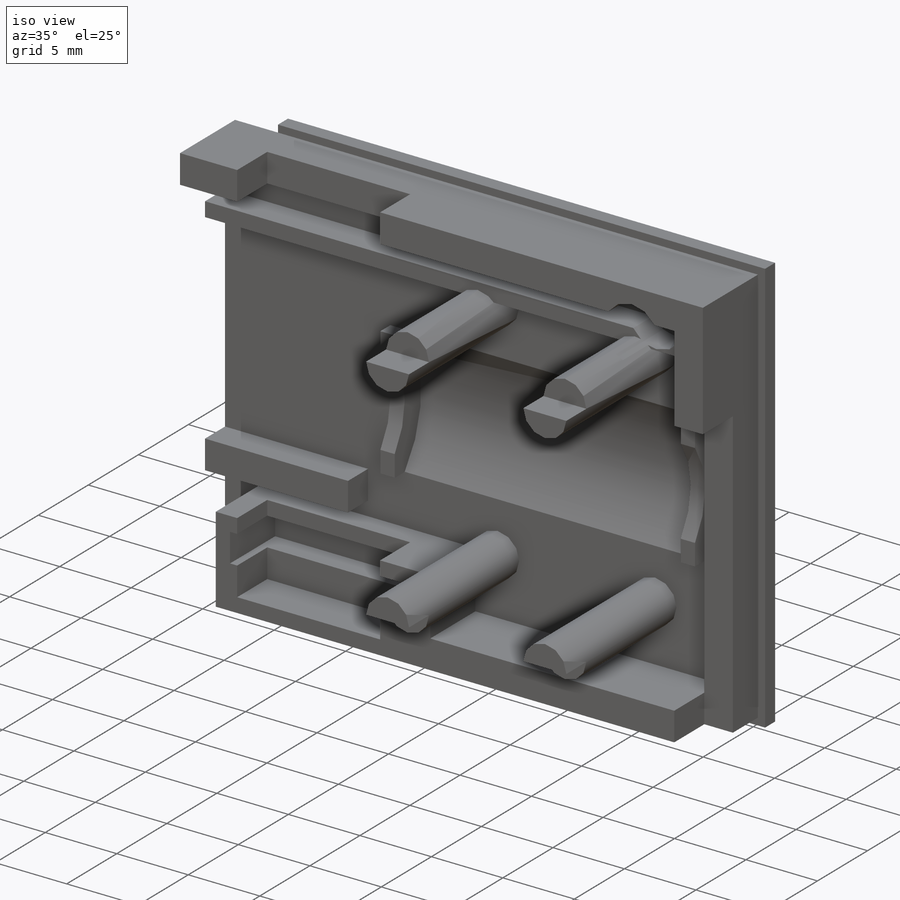
[diagram: iso view]
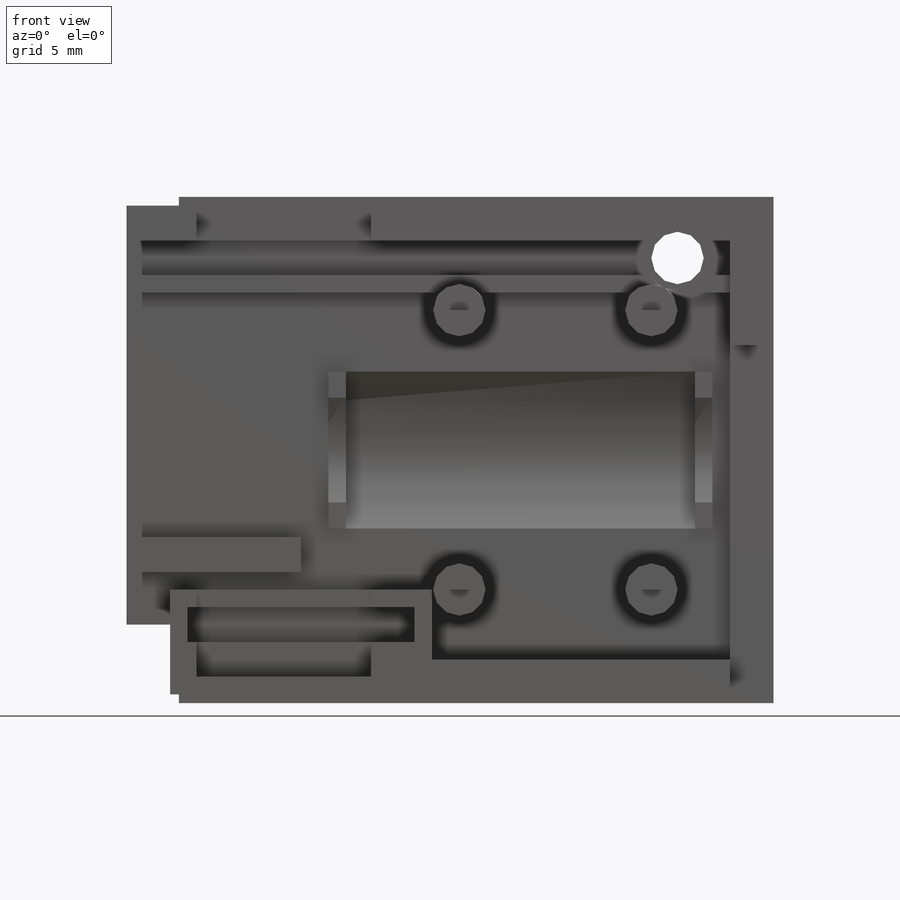
[diagram: front view]
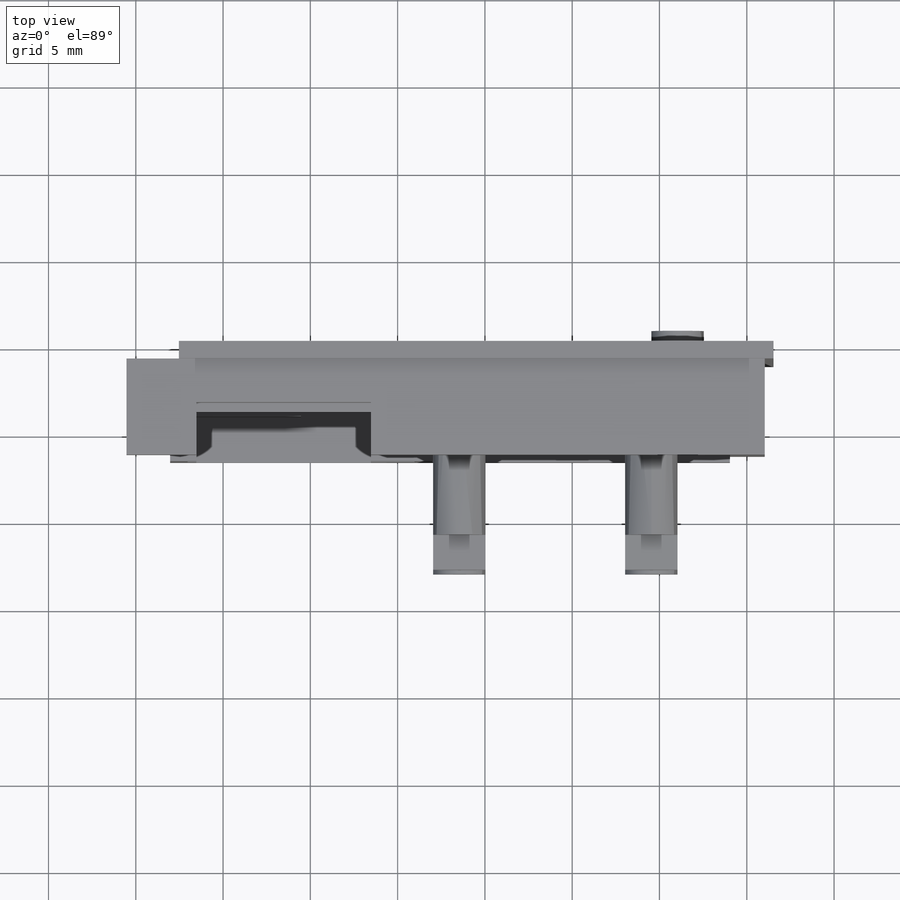
[diagram: top view]
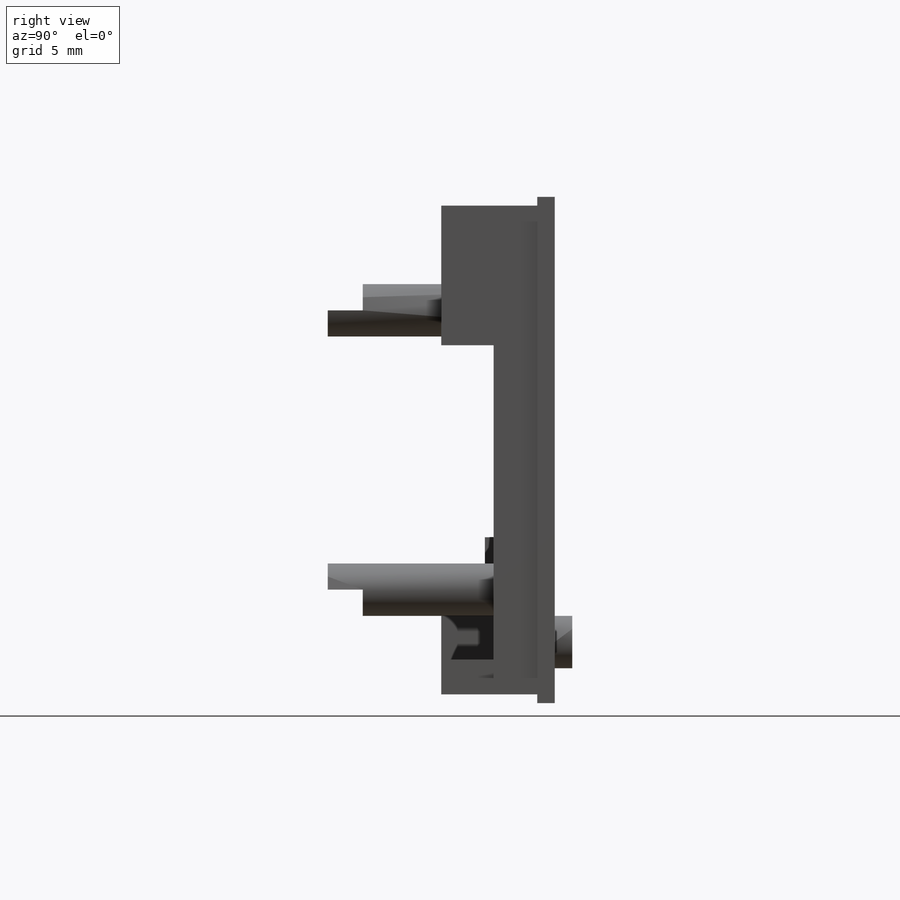
[diagram: right view]
SOLIDWORKS PART (.sldprt)
format: sldprt  version: not decoded by parser v0  size: 470,528 bytes
history: native  units: mm
features: sketch x16, cut_extrude x9, extrude x7, plane x3, material x1, shell x1, pattern_linear x1 (+12 scaffold rows collapsed)
feature tree (50):
  scaffold x12  (default folders/planes/origin — collapsed)
  material  "Matériau <non spécifié>"
  plane  "Face"
  plane  "Dessus"
  plane  "Droite"
  sketch  "Esquisse2"  dims[D1=29.0mm D2=~34.067385mm]
  extrude  "Extrusion1"  Depth=1mm
  sketch  "Esquisse3"  dims[D1=0.5mm D2=0.5mm D3=0.5mm D4=3.0mm]
  extrude  "Extrusion2"  Depth=5.5mm
  shell  "Coque2"  Thickness=2mm
  sketch  "Esquisse4"  dims[D1=20.0mm D2=3.0mm]
  cut_extrude  "Enlèv. mat.-Extru.1"  Depth=2mm
  sketch  "Esquisse5"
  cut_extrude  "Enlèv. mat.-Extru.2"  [1 undecoded]
  sketch  "Esquisse7"  dims[D1=4.0mm D2=2.5mm]
  cut_extrude  "Enlèv. mat.-Extru.3"  Depth=10mm
  sketch  "Esquisse9"  dims[D1=15.0mm D2=4.0mm D3=1.0mm D4=1.0mm D5=1.0mm D6=1.0mm]
  extrude  "Extrusion4"  [1 undecoded]
  sketch  "Esquisse8"  dims[D1=10.0mm D2=3.0mm D3=4.0mm]
  cut_extrude  "Enlèv. mat.-Extru.4"  Depth=27mm
  sketch  "Esquisse6"  dims[c1.D1=2.0mm c1.D2=27.0mm c1.D3=7.0mm c1.D4=10.0mm c2.D1=2.0mm c2.D2=7.0mm c2.D3=10.0mm c2.D4=27.0mm c2.D5=1.0mm c2.D6=2.0mm]
  extrude  "Extrusion3"  Depth=2mm
  sketch  "Esquisse10"  dims[D1=3.0mm D2=4.0mm D3=4.5mm]
  extrude  "Extrusion5"  Depth=11mm
  pattern_linear  "Répétition linéaire1"  Count1=2 Count2=2 Spacing1=11mm Spacing2=16mm
  sketch  "Esquisse11"  dims[D1=1.9467mm D2=~2.485916mm D3=~2.343754mm D4=~2.745814mm D5=~7.938921mm D6=~8.95744mm D7=12.5mm D8=~13.946051mm D9=~2.454793mm D10=~2.81427mm D11=16.0mm D12=~19.053922mm D13=~19.23366mm]
  cut_extrude  "Enlèv. mat.-Extru.5"  Depth=2mm
  sketch  "Esquisse12"  dims[D1=9.0mm D2=1.0mm D3=1.0mm D4=14.0mm D5=1.0mm D6=9.0mm D7=20.0mm]
  extrude  "Extrusion6"  Depth=1mm
  sketch  "Esquisse13"  dims[c1.D3=5.0mm c1.D1=6.0mm c1.D2=1.5mm c2.D3=1.0mm]
  cut_extrude  "Enlèv. mat.-Extru.6"  [1 undecoded]
  sketch  "Esquisse16"  dims[D1=2.0mm]
  cut_extrude  "Enlèv. mat.-Extru.9"  [1 undecoded]
  sketch  "Esquisse17"  dims[c1.D1=~3.883541mm c1.D3=3.0mm c2.D1=3.5mm c2.D2=5.5mm c2.D3=3.0mm]
  cut_extrude  "Enlèv. mat.-Extru.10"  [1 undecoded]
  sketch  "Esquisse18"  dims[c1.D1=3.0mm c1.D4=3.0mm c1.D2=3.5mm c1.D3=5.5mm c2.D4=22.0mm]
  extrude  "Extrusion7"  Depth=1mm
  sketch  "Esquisse19"  dims[D1=3.8mm]
  cut_extrude  "Enlèv. mat.-Extru.11"  [1 undecoded]
decode coverage: 27 of 34 modeling features carry decoded parameters
note: ~ marks probable driven/reference dimensions
note: 6 parameter values undecoded
summary: no parameter record found for 6 features
note: suppression state not decoded; provenance and decode notes live in map.json
